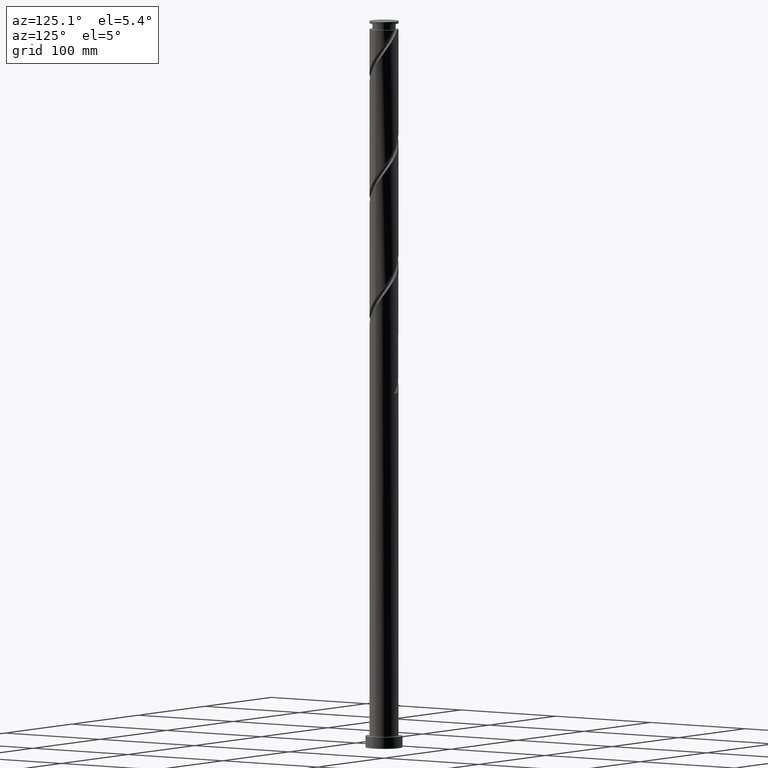
[diagram: clean part render]
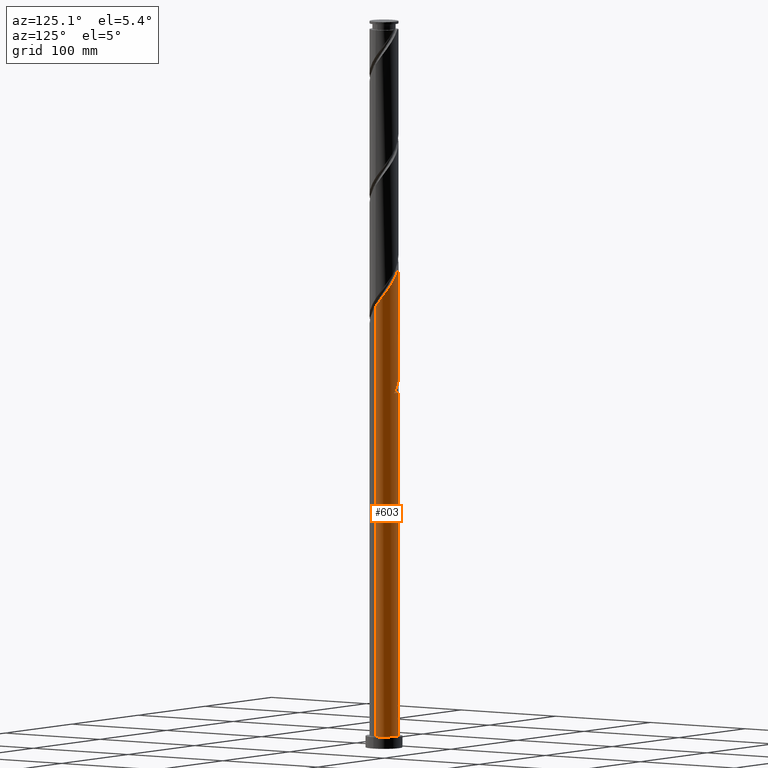
[diagram: same view with one face highlighted and labeled with its STEP entity id]
A machine part, auxiliary view. The second image highlights one B-rep face of the part: STEP entity #603.
In plain terms, the highlighted cylindrical surface (edge-blend (fillet) strip) has radius 12.5 mm, axis along (-0, -0, -1).
Its self-contained STEP definition (entity closure, byte-faithful):
#8 = CARTESIAN_POINT ( 'NONE',  ( 3.247457366233081899, 12.12623887693839642, 405.1922435647238103 ) ) ;
#19 = CARTESIAN_POINT ( 'NONE',  ( -7.719917236855212472, 9.899218479363886658, 420.6334200353120423 ) ) ;
#30 = EDGE_CURVE ( 'NONE', #2133, #1121, #1856, .T. ) ;
#31 = CARTESIAN_POINT ( 'NONE',  ( -10.77461861410355759, 6.441990559344744405, 426.8098906235473464 ) ) ;
#38 = EDGE_CURVE ( 'NONE', #410, #2133, #663, .T. ) ;
#44 = ORIENTED_EDGE ( 'NONE', *, *, #860, .T. ) ;
#51 = CARTESIAN_POINT ( 'NONE',  ( -12.50000000000002132, 0.4806398485960431954, 330.1712172732641761 ) ) ;
#86 = CARTESIAN_POINT ( 'NONE',  ( -2.487468592766557407, 12.25000000000001776, 307.9128318000178979 ) ) ;
#89 = CARTESIAN_POINT ( 'NONE',  ( -4.696046306251090208, 11.58434931662309531, 416.0010670941354647 ) ) ;
#179 = CARTESIAN_POINT ( 'NONE',  ( -12.50000000000000000, 7.230351822097493687E-15, 337.5110405747118421 ) ) ;
#188 = CARTESIAN_POINT ( 'NONE',  ( -6.744705795062978737, 10.52420751116417286, 314.0893023882532020 ) ) ;
#194 = CARTESIAN_POINT ( 'NONE',  ( -1.352338926301694277, 12.48049790971830220, 411.3687141529589439 ) ) ;
#199 = CARTESIAN_POINT ( 'NONE',  ( -9.407447597958748631, 8.312134403252507298, 318.7216553294296659 ) ) ;
#208 = DIRECTION ( 'NONE',  ( 1.000000000000000000, 0.000000000000000000, 0.000000000000000000 ) ) ;
#211 = CARTESIAN_POINT ( 'NONE',  ( -12.07451047968507574, 3.233604285619342988, 326.4422435647238672 ) ) ;
#226 = CARTESIAN_POINT ( 'NONE',  ( -11.77487291607573106, 4.352472453254563334, 429.8981259176649701 ) ) ;
#229 = DIRECTION ( 'NONE',  ( -0.000000000000000000, -0.000000000000000000, -1.000000000000000000 ) ) ;
#254 = CARTESIAN_POINT ( 'NONE',  ( -12.37414804329442219, 2.114736117984124419, 432.9863612117825369 ) ) ;
#260 = DIRECTION ( 'NONE',  ( -0.000000000000000000, -0.000000000000000000, -1.000000000000000000 ) ) ;
#323 = CARTESIAN_POINT ( 'NONE',  ( -12.42725830588523195, 1.346570086852729942, 335.7069494470767950 ) ) ;
#334 = EDGE_CURVE ( 'NONE', #802, #428, #1000, .T. ) ;
#337 = CARTESIAN_POINT ( 'NONE',  ( 0.000000000000000000, 0.000000000000000000, 307.9128318000178979 ) ) ;
#341 = CARTESIAN_POINT ( 'NONE',  ( -12.50000000000002487, -5.796232452425225323E-15, 435.8146230253240105 ) ) ;
#353 = VECTOR ( 'NONE', #924, 1000.000000000000000 ) ;
#360 = DIRECTION ( 'NONE',  ( 0.000000000000000000, 0.000000000000000000, 1.000000000000000000 ) ) ;
#364 = CARTESIAN_POINT ( 'NONE',  ( -12.50000000000002487, -5.796232452425225323E-15, 330.8146230253239537 ) ) ;
#392 = CARTESIAN_POINT ( 'NONE',  ( 10.56929425715108373, 6.773600781846147889, 392.8393023882532020 ) ) ;
#398 = CARTESIAN_POINT ( 'NONE',  ( -12.50000000000002487, -5.796232452425225323E-15, 330.8146230253239537 ) ) ;
#410 = VERTEX_POINT ( 'NONE', #551 ) ;
#427 = CARTESIAN_POINT ( 'NONE',  ( 12.50000000000001776, 0.6752497959908546621, 384.2185422573367646 ) ) ;
#428 = VERTEX_POINT ( 'NONE', #398 ) ;
#443 = CYLINDRICAL_SURFACE ( 'NONE', #1312, 12.50000000000000000 ) ;
#467 = VECTOR ( 'NONE', #229, 1000.000000000000000 ) ;
#468 = ORIENTED_EDGE ( 'NONE', *, *, #2085, .F. ) ;
#472 = ORIENTED_EDGE ( 'NONE', *, *, #38, .F. ) ;
#490 = CARTESIAN_POINT ( 'NONE',  ( 2.487468592766561848, 12.25000000000000000, 307.9128318000178410 ) ) ;
#500 = CARTESIAN_POINT ( 'NONE',  ( -12.50000000000000355, 0.6752497959908092540, 336.6071213426992017 ) ) ;
#516 = CARTESIAN_POINT ( 'NONE',  ( -2.487468592766557407, 12.25000000000001776, 307.9128318000178979 ) ) ;
#520 = CARTESIAN_POINT ( 'NONE',  ( -2.487468592766556963, 12.25000000000001776, 412.9128318000179547 ) ) ;
#530 = CARTESIAN_POINT ( 'NONE',  ( -8.563682417406974778, 9.105676441308196090, 422.1775376823708825 ) ) ;
#545 = CARTESIAN_POINT ( 'NONE',  ( 0.9639726868114796288, 12.51648534154676540, 408.2804788588414340 ) ) ;
#551 = CARTESIAN_POINT ( 'NONE',  ( 12.50000000000002309, 6.812067005943047733E-15, 383.3146230253240674 ) ) ;
#558 = CARTESIAN_POINT ( 'NONE',  ( 7.408666546675614306, 10.13426409001873729, 399.0157729764883925 ) ) ;
#560 = CARTESIAN_POINT ( 'NONE',  ( 0.000000000000000000, 0.000000000000000000, 10.00000000000000000 ) ) ;
#601 = CARTESIAN_POINT ( 'NONE',  ( -12.46309222167394282, 0.9598605492731354660, 434.5304788588414908 ) ) ;
#603 = ADVANCED_FACE ( 'NONE', ( #1114 ), #443, .T. ) ;
#604 = CARTESIAN_POINT ( 'NONE',  ( 12.50000000000000000, 1.530808498934191521E-15, 630.0000000000000000 ) ) ;
#661 = CARTESIAN_POINT ( 'NONE',  ( -6.414510163309515178, 10.72865599060753539, 320.2657729764884493 ) ) ;
#663 =( BOUNDED_CURVE ( )  B_SPLINE_CURVE ( 2, ( #1430, #427, #2132, #931, #2110, #1945, #1120, #392, #1206, #2060, #1704, #558, #1724, #899, #877, #8, #731, #545, #1853, #194, #520, #1193, #89, #1176, #2026, #19, #530, #1037, #688, #31, #1095, #226, #943, #254, #601, #1576, #2098 ),
 .UNSPECIFIED., .F., .T. ) 
 B_SPLINE_CURVE_WITH_KNOTS ( ( 3, 2, 2, 2, 2, 2, 2, 2, 2, 2, 2, 2, 2, 2, 2, 2, 2, 2, 3 ),
 ( 0.1795293573162907719, 0.1838235294117647189, 0.1911764705882352811, 0.1985294117647058432, 0.2058823529411765163, 0.2132352941176470784, 0.2205882352941176405, 0.2279411764705882026, 0.2352941176470588758, 0.2426470588235294379, 0.2500000000000000000, 0.2573529411764705621, 0.2647058823529411242, 0.2720588235294117974, 0.2794117647058823595, 0.2867647058823529216, 0.2941176470588234837, 0.3014705882352941568, 0.3045293573162906053 ),
 .UNSPECIFIED. ) 
 CURVE ( )  GEOMETRIC_REPRESENTATION_ITEM ( )  RATIONAL_B_SPLINE_CURVE ( ( 0.9072066346052969354, 0.9068261157890642465, 0.9090909090909354839, 0.9052128875409666264, 0.9090909090909354839, 0.9052128875409666264, 0.9090909090909354839, 0.9052128875409666264, 0.9090909090909354839, 0.9052128875409666264, 0.9090909090909354839, 0.9052128875409666264, 0.9090909090909354839, 0.9052128875409666264, 0.9090909090909354839, 0.9052128875409666264, 0.9090909090909354839, 0.9052128875409666264, 0.9090909090909354839, 0.9052128875409666264, 0.9090909090909354839, 0.9052128875409666264, 0.9090909090909354839, 0.9052128875409666264, 0.9090909090909354839, 0.9052128875409666264, 0.9090909090909354839, 0.9052128875409666264, 0.9090909090909354839, 0.9052128875409666264, 0.9090909090909354839, 0.9052128875409666264, 0.9090909090909354839, 0.9052128875409666264, 0.9090909090909354839, 0.9074776808428377528, 0.9072066346052970465 ) ) 
 REPRESENTATION_ITEM ( '' )  );
#672 = CARTESIAN_POINT ( 'NONE',  ( -11.96822901334311418, 3.607144893703627453, 332.6187141529590576 ) ) ;
#680 = CARTESIAN_POINT ( 'NONE',  ( -0.9639726868114723013, 12.51648534154674586, 312.5451847411943618 ) ) ;
#688 = CARTESIAN_POINT ( 'NONE',  ( -10.09103310603114956, 7.377062481298623631, 425.2657729764884493 ) ) ;
#696 = CARTESIAN_POINT ( 'NONE',  ( -12.30248021171700934, 2.498125154267604842, 334.1628318000178410 ) ) ;
#723 = EDGE_CURVE ( 'NONE', #428, #1212, #2114, .T. ) ;
#726 = CARTESIAN_POINT ( 'NONE',  ( -7.719917236855212472, 9.899218479363886658, 315.6334200353120423 ) ) ;
#731 = CARTESIAN_POINT ( 'NONE',  ( 2.105715026522281708, 12.32136210924258179, 406.7363612117825937 ) ) ;
#736 = CARTESIAN_POINT ( 'NONE',  ( -11.77487291607573106, 4.352472453254563334, 324.8981259176647995 ) ) ;
#770 = LINE ( 'NONE', #604, #467 ) ;
#802 = VERTEX_POINT ( 'NONE', #86 ) ;
#841 = CARTESIAN_POINT ( 'NONE',  ( 0.1941831197451102387, 12.49849162563251603, 311.0010670941356352 ) ) ;
#860 = EDGE_CURVE ( 'NONE', #802, #1729, #888, .T. ) ;
#877 = CARTESIAN_POINT ( 'NONE',  ( 4.333905573088263630, 11.72464338406737738, 403.6481259176649132 ) ) ;
#882 = CARTESIAN_POINT ( 'NONE',  ( -10.77461861410355759, 6.441990559344744405, 321.8098906235471759 ) ) ;
#888 = CIRCLE ( 'NONE', #1721, 12.50000000000000000 ) ;
#899 = CARTESIAN_POINT ( 'NONE',  ( 5.420353779943436479, 11.32304789119637078, 402.1040082706061298 ) ) ;
#918 = CARTESIAN_POINT ( 'NONE',  ( 2.487468592766561404, 12.25000000000000000, 307.9128318000178979 ) ) ;
#924 = DIRECTION ( 'NONE',  ( -0.000000000000000000, -0.000000000000000000, -1.000000000000000000 ) ) ;
#931 = CARTESIAN_POINT ( 'NONE',  ( 12.30248021171703243, 2.498125154267603509, 386.6628318000178979 ) ) ;
#943 = CARTESIAN_POINT ( 'NONE',  ( -12.07451047968507574, 3.233604285619342988, 431.4422435647236966 ) ) ;
#988 = CARTESIAN_POINT ( 'NONE',  ( -12.50000000000000000, 0.000000000000000000, 630.0000000000000000 ) ) ;
#998 = CARTESIAN_POINT ( 'NONE',  ( -2.105715026522275046, 12.32136210924256403, 314.0893023882532020 ) ) ;
#1000 =( BOUNDED_CURVE ( )  B_SPLINE_CURVE ( 2, ( #516, #1569, #1074, #1031, #188, #726, #2054, #199, #1539, #882, #1741, #736, #211, #1548, #1902, #51, #364 ),
 .UNSPECIFIED., .F., .T. ) 
 B_SPLINE_CURVE_WITH_KNOTS ( ( 3, 2, 2, 2, 2, 2, 2, 2, 3 ),
 ( 0.000000000000000000, 0.007352941176470562112, 0.01470588235294112422, 0.02205882352941179736, 0.02941176470588235947, 0.03676470588235292852, 0.04411764705882348370, 0.05147058823529415683, 0.05452935731629041799 ),
 .UNSPECIFIED. ) 
 CURVE ( )  GEOMETRIC_REPRESENTATION_ITEM ( )  RATIONAL_B_SPLINE_CURVE ( ( 0.9090909090909354839, 0.9052128875409666264, 0.9090909090909354839, 0.9052128875409666264, 0.9090909090909354839, 0.9052128875409666264, 0.9090909090909354839, 0.9052128875409666264, 0.9090909090909354839, 0.9052128875409666264, 0.9090909090909354839, 0.9052128875409666264, 0.9090909090909354839, 0.9052128875409666264, 0.9090909090909354839, 0.9074776808428379749, 0.9072066346052971575 ) ) 
 REPRESENTATION_ITEM ( '' )  );
#1031 = CARTESIAN_POINT ( 'NONE',  ( -5.769494353270750331, 11.14919654296445550, 312.5451847411943618 ) ) ;
#1037 = CARTESIAN_POINT ( 'NONE',  ( -9.407447597958748631, 8.312134403252507298, 423.7216553294296659 ) ) ;
#1074 = CARTESIAN_POINT ( 'NONE',  ( -4.696046306251090208, 11.58434931662309531, 311.0010670941355784 ) ) ;
#1095 = CARTESIAN_POINT ( 'NONE',  ( -11.27474576508964610, 5.397231506299652537, 428.3540082706061867 ) ) ;
#1114 = FACE_OUTER_BOUND ( 'NONE', #1777, .T. ) ;
#1120 = CARTESIAN_POINT ( 'NONE',  ( 11.10163603606015847, 5.744882707492903862, 391.2951847411944186 ) ) ;
#1121 = VERTEX_POINT ( 'NONE', #1196 ) ;
#1157 = VERTEX_POINT ( 'NONE', #2029 ) ;
#1172 = AXIS2_PLACEMENT_3D ( 'NONE', #560, #360, #208 ) ;
#1176 = CARTESIAN_POINT ( 'NONE',  ( -5.769494353270750331, 11.14919654296445550, 417.5451847411944755 ) ) ;
#1193 = CARTESIAN_POINT ( 'NONE',  ( -3.622598259231427420, 12.01950209028173866, 414.4569494470766813 ) ) ;
#1196 = CARTESIAN_POINT ( 'NONE',  ( -12.50000000000000000, 7.230351822097493687E-15, 337.5110405747118421 ) ) ;
#1206 = CARTESIAN_POINT ( 'NONE',  ( 9.856990158513978528, 7.686985430905863836, 394.3834200353120423 ) ) ;
#1212 = VERTEX_POINT ( 'NONE', #1706 ) ;
#1219 = EDGE_CURVE ( 'NONE', #1157, #1212, #1761, .T. ) ;
#1253 = DIRECTION ( 'NONE',  ( -0.000000000000000000, -0.000000000000000000, -1.000000000000000000 ) ) ;
#1257 = ORIENTED_EDGE ( 'NONE', *, *, #1219, .T. ) ;
#1312 = AXIS2_PLACEMENT_3D ( 'NONE', #1778, #260, #1445 ) ;
#1329 = CARTESIAN_POINT ( 'NONE',  ( -9.144686059876869777, 8.600370079965557579, 324.8981259176649132 ) ) ;
#1379 = EDGE_CURVE ( 'NONE', #410, #1157, #770, .T. ) ;
#1430 = CARTESIAN_POINT ( 'NONE',  ( 12.50000000000002309, 6.812067005943047733E-15, 383.3146230253241242 ) ) ;
#1445 = DIRECTION ( 'NONE',  ( -1.000000000000000000, 0.000000000000000000, 0.000000000000000000 ) ) ;
#1492 = ORIENTED_EDGE ( 'NONE', *, *, #334, .F. ) ;
#1511 = CARTESIAN_POINT ( 'NONE',  ( -7.408666546675603648, 10.13426409001871598, 321.8098906235472327 ) ) ;
#1522 = CARTESIAN_POINT ( 'NONE',  ( -10.56929425715106063, 6.773600781846143448, 327.9863612117825369 ) ) ;
#1531 = CARTESIAN_POINT ( 'NONE',  ( -9.856990158513969646, 7.686985430905852290, 326.4422435647238672 ) ) ;
#1539 = CARTESIAN_POINT ( 'NONE',  ( -10.09103310603114956, 7.377062481298623631, 320.2657729764885630 ) ) ;
#1548 = CARTESIAN_POINT ( 'NONE',  ( -12.37414804329442219, 2.114736117984124419, 327.9863612117826506 ) ) ;
#1569 = CARTESIAN_POINT ( 'NONE',  ( -3.622598259231427420, 12.01950209028173866, 309.4569494470766813 ) ) ;
#1576 = CARTESIAN_POINT ( 'NONE',  ( -12.50000000000002309, 0.4806398485960137190, 435.1712172732642898 ) ) ;
#1700 = CARTESIAN_POINT ( 'NONE',  ( 1.352338926301693611, 12.48049790971827733, 309.4569494470766244 ) ) ;
#1704 = CARTESIAN_POINT ( 'NONE',  ( 8.276676303276255808, 9.367317084992148324, 397.4716553294297228 ) ) ;
#1706 = CARTESIAN_POINT ( 'NONE',  ( -12.50000000000000000, 0.000000000000000000, 10.00000000000000000 ) ) ;
#1721 = AXIS2_PLACEMENT_3D ( 'NONE', #337, #2020, #1986 ) ;
#1724 = CARTESIAN_POINT ( 'NONE',  ( 6.414510163309526725, 10.72865599060755137, 400.5598906235472327 ) ) ;
#1729 = VERTEX_POINT ( 'NONE', #918 ) ;
#1741 = CARTESIAN_POINT ( 'NONE',  ( -11.27474576508964610, 5.397231506299652537, 323.3540082706061867 ) ) ;
#1761 = CIRCLE ( 'NONE', #1172, 12.50000000000000000 ) ;
#1777 = EDGE_LOOP ( 'NONE', ( #472, #2142, #1257, #2166, #1492, #44, #468, #2032 ) ) ;
#1778 = CARTESIAN_POINT ( 'NONE',  ( 0.000000000000000000, 0.000000000000000000, 630.0000000000000000 ) ) ;
#1853 = CARTESIAN_POINT ( 'NONE',  ( -0.1941831197451120705, 12.49849162563253380, 409.8245965059003311 ) ) ;
#1856 = LINE ( 'NONE', #988, #2189 ) ;
#1861 = CARTESIAN_POINT ( 'NONE',  ( -11.10163603606014249, 5.744882707492896756, 329.5304788588416045 ) ) ;
#1874 = CARTESIAN_POINT ( 'NONE',  ( -8.276676303276238045, 9.367317084992135889, 323.3540082706061867 ) ) ;
#1902 = CARTESIAN_POINT ( 'NONE',  ( -12.46309222167394282, 0.9598605492731354660, 329.5304788588414340 ) ) ;
#1920 =( BOUNDED_CURVE ( )  B_SPLINE_CURVE ( 2, ( #179, #500, #323, #696, #672, #2006, #1861, #1522, #1531, #1329, #1874, #1511, #661, #2034, #2184, #1998, #998, #680, #841, #1700, #490 ),
 .UNSPECIFIED., .F., .T. ) 
 B_SPLINE_CURVE_WITH_KNOTS ( ( 3, 2, 2, 2, 2, 2, 2, 2, 2, 2, 3 ),
 ( 0.9295293573162904943, 0.9338235294117647189, 0.9411764705882352811, 0.9485294117647058432, 0.9558823529411765163, 0.9632352941176470784, 0.9705882352941176405, 0.9779411764705882026, 0.9852941176470588758, 0.9926470588235294379, 1.000000000000000000 ),
 .UNSPECIFIED. ) 
 CURVE ( )  GEOMETRIC_REPRESENTATION_ITEM ( )  RATIONAL_B_SPLINE_CURVE ( ( 0.9072066346052909402, 0.9068261157890580293, 0.9090909090909291557, 0.9052128875409607422, 0.9090909090909291557, 0.9052128875409607422, 0.9090909090909291557, 0.9052128875409607422, 0.9090909090909291557, 0.9052128875409607422, 0.9090909090909291557, 0.9052128875409607422, 0.9090909090909291557, 0.9052128875409607422, 0.9090909090909291557, 0.9052128875409607422, 0.9090909090909291557, 0.9052128875409607422, 0.9090909090909291557, 0.9052128875409607422, 0.9090909090909291557 ) ) 
 REPRESENTATION_ITEM ( '' )  );
#1935 = CARTESIAN_POINT ( 'NONE',  ( -12.50000000000000000, 0.000000000000000000, 630.0000000000000000 ) ) ;
#1945 = CARTESIAN_POINT ( 'NONE',  ( 11.63397781496923677, 4.716164633139658946, 389.7510670941354647 ) ) ;
#1986 = DIRECTION ( 'NONE',  ( -1.000000000000000000, 0.000000000000000000, 0.000000000000000000 ) ) ;
#1998 = CARTESIAN_POINT ( 'NONE',  ( -3.247457366233077458, 12.12623887693837688, 315.6334200353120423 ) ) ;
#2006 = CARTESIAN_POINT ( 'NONE',  ( -11.63397781496921723, 4.716164633139650064, 331.0745965059002742 ) ) ;
#2020 = DIRECTION ( 'NONE',  ( 0.000000000000000000, -0.000000000000000000, -1.000000000000000000 ) ) ;
#2026 = CARTESIAN_POINT ( 'NONE',  ( -6.744705795062978737, 10.52420751116417286, 419.0893023882532589 ) ) ;
#2029 = CARTESIAN_POINT ( 'NONE',  ( 12.50000000000000000, 1.530808498934191521E-15, 10.00000000000000000 ) ) ;
#2032 = ORIENTED_EDGE ( 'NONE', *, *, #30, .F. ) ;
#2034 = CARTESIAN_POINT ( 'NONE',  ( -5.420353779943423156, 11.32304789119635302, 318.7216553294296659 ) ) ;
#2054 = CARTESIAN_POINT ( 'NONE',  ( -8.563682417406974778, 9.105676441308196090, 317.1775376823708257 ) ) ;
#2060 = CARTESIAN_POINT ( 'NONE',  ( 9.144686059876885764, 8.600370079965570014, 395.9275376823708825 ) ) ;
#2085 = EDGE_CURVE ( 'NONE', #1121, #1729, #1920, .T. ) ;
#2098 = CARTESIAN_POINT ( 'NONE',  ( -12.50000000000002665, -5.796232452425225323E-15, 435.8146230253240105 ) ) ;
#2110 = CARTESIAN_POINT ( 'NONE',  ( 11.96822901334313016, 3.607144893703626121, 388.2069494470767381 ) ) ;
#2114 = LINE ( 'NONE', #1935, #353 ) ;
#2132 = CARTESIAN_POINT ( 'NONE',  ( 12.42725830588524971, 1.346570086852729498, 385.1187141529591713 ) ) ;
#2133 = VERTEX_POINT ( 'NONE', #341 ) ;
#2142 = ORIENTED_EDGE ( 'NONE', *, *, #1379, .T. ) ;
#2166 = ORIENTED_EDGE ( 'NONE', *, *, #723, .F. ) ;
#2184 = CARTESIAN_POINT ( 'NONE',  ( -4.333905573088250307, 11.72464338406736317, 317.1775376823708257 ) ) ;
#2189 = VECTOR ( 'NONE', #1253, 1000.000000000000000 ) ;